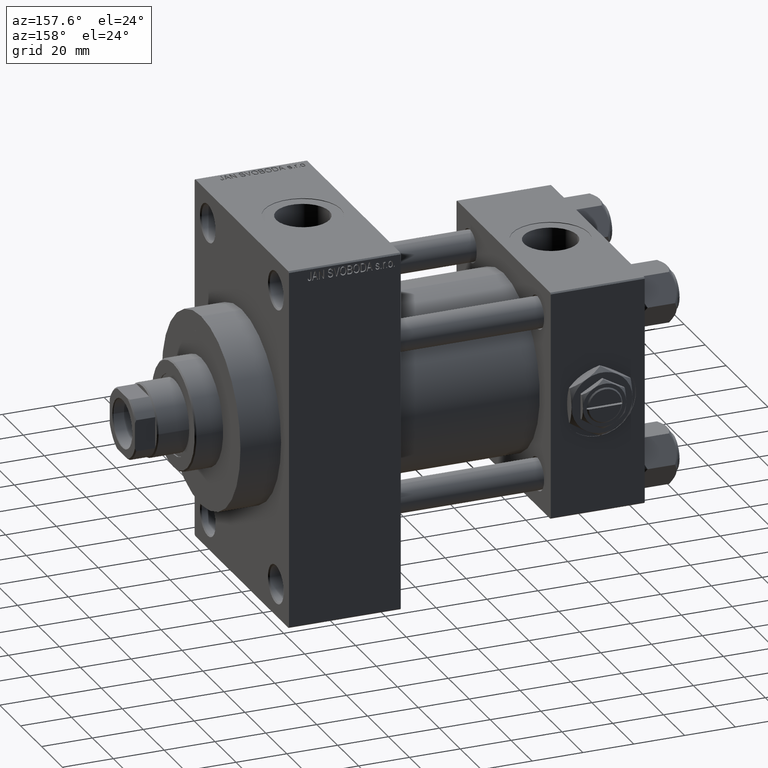
[diagram: clean part render]
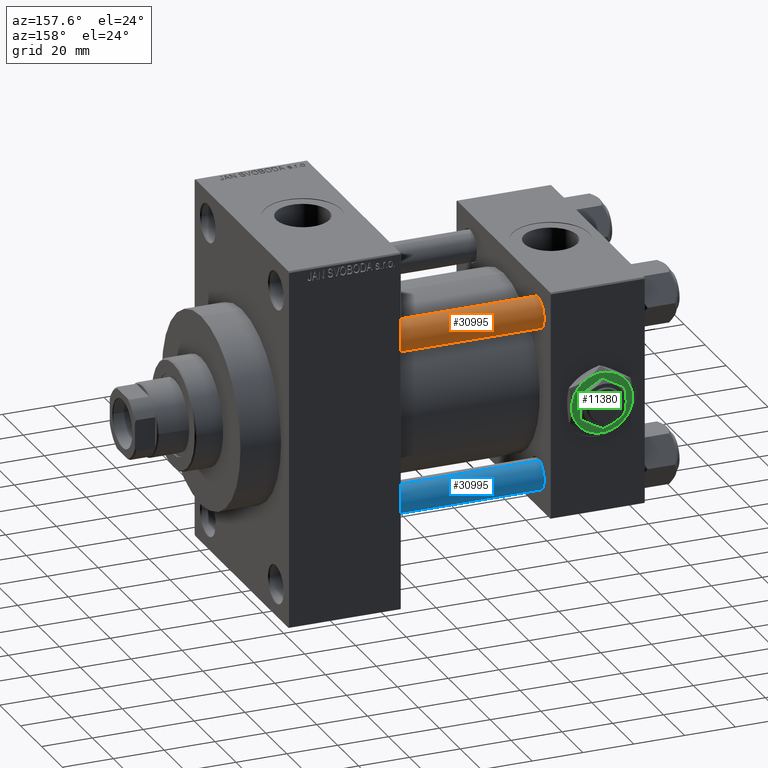
[diagram: same view with three faces highlighted in distinct colors, each labeled with its STEP entity id]
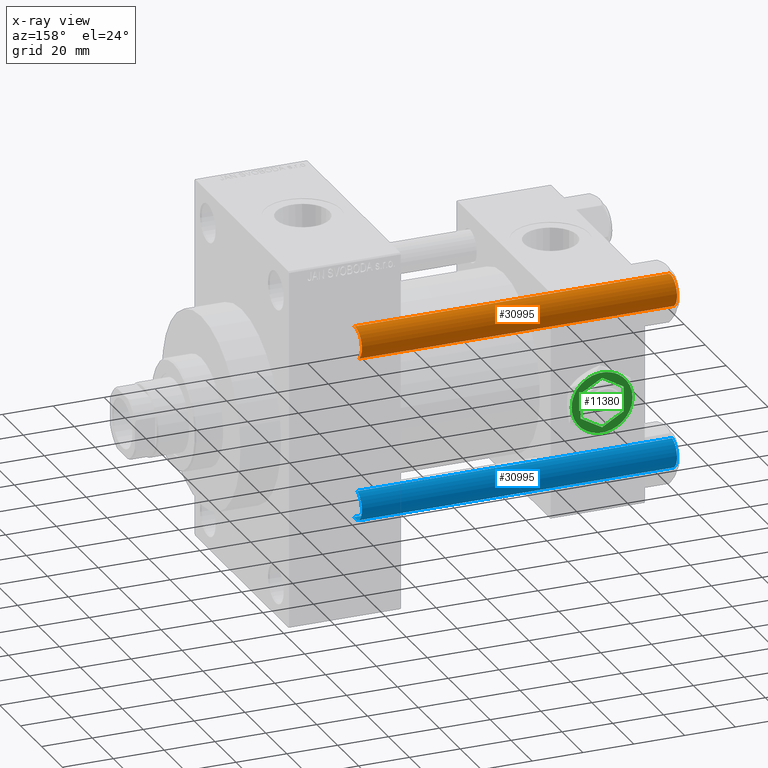
[diagram: x-ray of the same camera — body ghosted, the three highlighted faces saturated]
A machine part, auxiliary view with three faces highlighted in distinct colors.
The next image is the same camera in x-ray (body ghosted, the three faces saturated) — at least one of them is partly hidden behind the body in this view.
Their STEP definitions:

[orange] entity #30995 — the highlighted cylindrical surface (edge-blend (fillet) strip) has radius 6 mm, axis along (-1, -0, 0).
#197 = ORIENTED_EDGE ( 'NONE', *, *, #20188, .T. ) ;
#246 = CIRCLE ( 'NONE', #1820, 6.000000000000000888 ) ;
#1820 = AXIS2_PLACEMENT_3D ( 'NONE', #48285, #2983, #37880 ) ;
#2673 = DIRECTION ( 'NONE',  ( -0.000000000000000000, -0.000000000000000000, 1.000000000000000000 ) ) ;
#2983 = DIRECTION ( 'NONE',  ( 0.000000000000000000, 0.000000000000000000, -1.000000000000000000 ) ) ;
#3056 = CARTESIAN_POINT ( 'NONE',  ( -6.000000000000000888, 0.000000000000000000, 125.0000000000000000 ) ) ;
#4878 = VECTOR ( 'NONE', #11475, 1000.000000000000000 ) ;
#5790 = LINE ( 'NONE', #3056, #4878 ) ;
#6026 = DIRECTION ( 'NONE',  ( -0.000000000000000000, -0.000000000000000000, -1.000000000000000000 ) ) ;
#7194 = VECTOR ( 'NONE', #39983, 1000.000000000000000 ) ;
#8865 = VERTEX_POINT ( 'NONE', #42243 ) ;
#8965 = VERTEX_POINT ( 'NONE', #47664 ) ;
#11475 = DIRECTION ( 'NONE',  ( -0.000000000000000000, -0.000000000000000000, -1.000000000000000000 ) ) ;
#13502 = CARTESIAN_POINT ( 'NONE',  ( 6.000000000000000888, 7.347880794884120722E-16, 125.0000000000000000 ) ) ;
#13576 = CARTESIAN_POINT ( 'NONE',  ( 0.000000000000000000, 0.000000000000000000, 0.4999999999999865663 ) ) ;
#15530 = ORIENTED_EDGE ( 'NONE', *, *, #21997, .F. ) ;
#16934 = FACE_OUTER_BOUND ( 'NONE', #37124, .T. ) ;
#19537 = VERTEX_POINT ( 'NONE', #24829 ) ;
#20188 = EDGE_CURVE ( 'NONE', #47091, #19537, #22263, .T. ) ;
#21997 = EDGE_CURVE ( 'NONE', #8965, #19537, #5790, .T. ) ;
#22263 = CIRCLE ( 'NONE', #31727, 6.000000000000000888 ) ;
#24829 = CARTESIAN_POINT ( 'NONE',  ( -6.000000000000000888, 0.000000000000000000, 0.4999999999999865663 ) ) ;
#24853 = CARTESIAN_POINT ( 'NONE',  ( 0.000000000000000000, 0.000000000000000000, 125.0000000000000000 ) ) ;
#25619 = LINE ( 'NONE', #13502, #7194 ) ;
#29059 = DIRECTION ( 'NONE',  ( -1.000000000000000000, 0.000000000000000000, 0.000000000000000000 ) ) ;
#30995 = ADVANCED_FACE ( 'NONE', ( #16934 ), #47132, .T. ) ;
#31727 = AXIS2_PLACEMENT_3D ( 'NONE', #13576, #2673, #33353 ) ;
#33353 = DIRECTION ( 'NONE',  ( 1.000000000000000000, 0.000000000000000000, 0.000000000000000000 ) ) ;
#34992 = EDGE_CURVE ( 'NONE', #8865, #47091, #25619, .T. ) ;
#37087 = AXIS2_PLACEMENT_3D ( 'NONE', #24853, #6026, #29059 ) ;
#37124 = EDGE_LOOP ( 'NONE', ( #43412, #48748, #197, #15530 ) ) ;
#37880 = DIRECTION ( 'NONE',  ( 1.000000000000000000, 0.000000000000000000, 0.000000000000000000 ) ) ;
#39983 = DIRECTION ( 'NONE',  ( -0.000000000000000000, -0.000000000000000000, -1.000000000000000000 ) ) ;
#42146 = EDGE_CURVE ( 'NONE', #8965, #8865, #246, .T. ) ;
#42243 = CARTESIAN_POINT ( 'NONE',  ( 6.000000000000000888, 7.347880794884120722E-16, 124.5000000000000000 ) ) ;
#43412 = ORIENTED_EDGE ( 'NONE', *, *, #42146, .T. ) ;
#47091 = VERTEX_POINT ( 'NONE', #48726 ) ;
#47132 = CYLINDRICAL_SURFACE ( 'NONE', #37087, 6.000000000000000888 ) ;
#47664 = CARTESIAN_POINT ( 'NONE',  ( -6.000000000000000888, 0.000000000000000000, 124.5000000000000000 ) ) ;
#48285 = CARTESIAN_POINT ( 'NONE',  ( 0.000000000000000000, 0.000000000000000000, 124.5000000000000000 ) ) ;
#48726 = CARTESIAN_POINT ( 'NONE',  ( 6.000000000000000888, 7.347880794884120722E-16, 0.4999999999999865663 ) ) ;
#48748 = ORIENTED_EDGE ( 'NONE', *, *, #34992, .T. ) ;

[blue] entity #30995 — the highlighted cylindrical surface (edge-blend (fillet) strip) has radius 6 mm, axis along (1, -0, 0).
#197 = ORIENTED_EDGE ( 'NONE', *, *, #20188, .T. ) ;
#246 = CIRCLE ( 'NONE', #1820, 6.000000000000000888 ) ;
#1820 = AXIS2_PLACEMENT_3D ( 'NONE', #48285, #2983, #37880 ) ;
#2673 = DIRECTION ( 'NONE',  ( -0.000000000000000000, -0.000000000000000000, 1.000000000000000000 ) ) ;
#2983 = DIRECTION ( 'NONE',  ( 0.000000000000000000, 0.000000000000000000, -1.000000000000000000 ) ) ;
#3056 = CARTESIAN_POINT ( 'NONE',  ( -6.000000000000000888, 0.000000000000000000, 125.0000000000000000 ) ) ;
#4878 = VECTOR ( 'NONE', #11475, 1000.000000000000000 ) ;
#5790 = LINE ( 'NONE', #3056, #4878 ) ;
#6026 = DIRECTION ( 'NONE',  ( -0.000000000000000000, -0.000000000000000000, -1.000000000000000000 ) ) ;
#7194 = VECTOR ( 'NONE', #39983, 1000.000000000000000 ) ;
#8865 = VERTEX_POINT ( 'NONE', #42243 ) ;
#8965 = VERTEX_POINT ( 'NONE', #47664 ) ;
#11475 = DIRECTION ( 'NONE',  ( -0.000000000000000000, -0.000000000000000000, -1.000000000000000000 ) ) ;
#13502 = CARTESIAN_POINT ( 'NONE',  ( 6.000000000000000888, 7.347880794884120722E-16, 125.0000000000000000 ) ) ;
#13576 = CARTESIAN_POINT ( 'NONE',  ( 0.000000000000000000, 0.000000000000000000, 0.4999999999999865663 ) ) ;
#15530 = ORIENTED_EDGE ( 'NONE', *, *, #21997, .F. ) ;
#16934 = FACE_OUTER_BOUND ( 'NONE', #37124, .T. ) ;
#19537 = VERTEX_POINT ( 'NONE', #24829 ) ;
#20188 = EDGE_CURVE ( 'NONE', #47091, #19537, #22263, .T. ) ;
#21997 = EDGE_CURVE ( 'NONE', #8965, #19537, #5790, .T. ) ;
#22263 = CIRCLE ( 'NONE', #31727, 6.000000000000000888 ) ;
#24829 = CARTESIAN_POINT ( 'NONE',  ( -6.000000000000000888, 0.000000000000000000, 0.4999999999999865663 ) ) ;
#24853 = CARTESIAN_POINT ( 'NONE',  ( 0.000000000000000000, 0.000000000000000000, 125.0000000000000000 ) ) ;
#25619 = LINE ( 'NONE', #13502, #7194 ) ;
#29059 = DIRECTION ( 'NONE',  ( -1.000000000000000000, 0.000000000000000000, 0.000000000000000000 ) ) ;
#30995 = ADVANCED_FACE ( 'NONE', ( #16934 ), #47132, .T. ) ;
#31727 = AXIS2_PLACEMENT_3D ( 'NONE', #13576, #2673, #33353 ) ;
#33353 = DIRECTION ( 'NONE',  ( 1.000000000000000000, 0.000000000000000000, 0.000000000000000000 ) ) ;
#34992 = EDGE_CURVE ( 'NONE', #8865, #47091, #25619, .T. ) ;
#37087 = AXIS2_PLACEMENT_3D ( 'NONE', #24853, #6026, #29059 ) ;
#37124 = EDGE_LOOP ( 'NONE', ( #43412, #48748, #197, #15530 ) ) ;
#37880 = DIRECTION ( 'NONE',  ( 1.000000000000000000, 0.000000000000000000, 0.000000000000000000 ) ) ;
#39983 = DIRECTION ( 'NONE',  ( -0.000000000000000000, -0.000000000000000000, -1.000000000000000000 ) ) ;
#42146 = EDGE_CURVE ( 'NONE', #8965, #8865, #246, .T. ) ;
#42243 = CARTESIAN_POINT ( 'NONE',  ( 6.000000000000000888, 7.347880794884120722E-16, 124.5000000000000000 ) ) ;
#43412 = ORIENTED_EDGE ( 'NONE', *, *, #42146, .T. ) ;
#47091 = VERTEX_POINT ( 'NONE', #48726 ) ;
#47132 = CYLINDRICAL_SURFACE ( 'NONE', #37087, 6.000000000000000888 ) ;
#47664 = CARTESIAN_POINT ( 'NONE',  ( -6.000000000000000888, 0.000000000000000000, 124.5000000000000000 ) ) ;
#48285 = CARTESIAN_POINT ( 'NONE',  ( 0.000000000000000000, 0.000000000000000000, 124.5000000000000000 ) ) ;
#48726 = CARTESIAN_POINT ( 'NONE',  ( 6.000000000000000888, 7.347880794884120722E-16, 0.4999999999999865663 ) ) ;
#48748 = ORIENTED_EDGE ( 'NONE', *, *, #34992, .T. ) ;

[green] entity #11380 — the highlighted planar face has unit normal (0, 1, 0).
#109 = ORIENTED_EDGE ( 'NONE', *, *, #30796, .F. ) ;
#130 = VECTOR ( 'NONE', #32143, 1000.000000000000114 ) ;
#461 = ORIENTED_EDGE ( 'NONE', *, *, #28599, .T. ) ;
#1671 = VERTEX_POINT ( 'NONE', #26677 ) ;
#3324 = DIRECTION ( 'NONE',  ( 0.000000000000000000, 0.000000000000000000, 1.000000000000000000 ) ) ;
#3749 = AXIS2_PLACEMENT_3D ( 'NONE', #33901, #7413, #49003 ) ;
#4309 = ORIENTED_EDGE ( 'NONE', *, *, #14888, .T. ) ;
#4501 = ORIENTED_EDGE ( 'NONE', *, *, #24500, .T. ) ;
#5567 = DIRECTION ( 'NONE',  ( 0.000000000000000000, 0.000000000000000000, 1.000000000000000000 ) ) ;
#5727 = CARTESIAN_POINT ( 'NONE',  ( 8.500000000000000000, -4.907477288111819824, 4.299999999999999822 ) ) ;
#6109 = AXIS2_PLACEMENT_3D ( 'NONE', #32057, #5567, #29086 ) ;
#6652 = DIRECTION ( 'NONE',  ( 1.000000000000000000, 0.000000000000000000, 0.000000000000000000 ) ) ;
#6762 = CARTESIAN_POINT ( 'NONE',  ( -8.500000000000000000, -4.907477288111819824, 4.299999999999999822 ) ) ;
#7413 = DIRECTION ( 'NONE',  ( 0.000000000000000000, 0.000000000000000000, 1.000000000000000000 ) ) ;
#8475 = EDGE_CURVE ( 'NONE', #13440, #1671, #25108, .T. ) ;
#9390 = DIRECTION ( 'NONE',  ( 0.8660254037844388186, 0.4999999999999997224, 0.000000000000000000 ) ) ;
#11380 = ADVANCED_FACE ( 'NONE', ( #39479, #40216 ), #20683, .T. ) ;
#12132 = CIRCLE ( 'NONE', #31085, 12.00000000000000178 ) ;
#12261 = AXIS2_PLACEMENT_3D ( 'NONE', #36850, #44750, #22237 ) ;
#12561 = VERTEX_POINT ( 'NONE', #47352 ) ;
#13096 = DIRECTION ( 'NONE',  ( -0.8660254037844385966, -0.5000000000000000000, 0.000000000000000000 ) ) ;
#13440 = VERTEX_POINT ( 'NONE', #22642 ) ;
#13476 = CARTESIAN_POINT ( 'NONE',  ( 0.000000000000000000, 0.000000000000000000, 4.299999999999999822 ) ) ;
#14409 = ORIENTED_EDGE ( 'NONE', *, *, #8475, .T. ) ;
#14888 = EDGE_CURVE ( 'NONE', #27397, #13440, #48166, .T. ) ;
#15008 = VECTOR ( 'NONE', #9390, 1000.000000000000114 ) ;
#15156 = VERTEX_POINT ( 'NONE', #17253 ) ;
#16723 = ORIENTED_EDGE ( 'NONE', *, *, #32335, .F. ) ;
#16801 = LINE ( 'NONE', #46999, #130 ) ;
#17253 = CARTESIAN_POINT ( 'NONE',  ( 8.499999999999996447, 4.907477288111821601, 4.299999999999999822 ) ) ;
#17562 = CARTESIAN_POINT ( 'NONE',  ( -2.644623992720612091E-15, -9.814954576223637872, 4.299999999999999822 ) ) ;
#17899 = VERTEX_POINT ( 'NONE', #34293 ) ;
#17951 = ORIENTED_EDGE ( 'NONE', *, *, #46996, .T. ) ;
#18517 = EDGE_LOOP ( 'NONE', ( #4501, #17951, #461, #26287, #4309, #14409 ) ) ;
#19117 = ORIENTED_EDGE ( 'NONE', *, *, #32743, .F. ) ;
#19142 = CARTESIAN_POINT ( 'NONE',  ( -8.500000000000000000, -4.907477288111819824, 4.299999999999999822 ) ) ;
#19701 = AXIS2_PLACEMENT_3D ( 'NONE', #44270, #24985, #6652 ) ;
#20283 = LINE ( 'NONE', #36100, #46172 ) ;
#20683 = PLANE ( 'NONE',  #6109 ) ;
#21164 = EDGE_LOOP ( 'NONE', ( #43364, #45161, #109, #16723, #40721, #19117 ) ) ;
#21341 = CIRCLE ( 'NONE', #30033, 12.00000000000000178 ) ;
#21427 = DIRECTION ( 'NONE',  ( 1.000000000000000000, 0.000000000000000000, 0.000000000000000000 ) ) ;
#21701 = CARTESIAN_POINT ( 'NONE',  ( 11.99999999999999645, 3.004629197474318063E-15, 4.299999999999999822 ) ) ;
#22145 = CARTESIAN_POINT ( 'NONE',  ( 0.000000000000000000, 0.000000000000000000, 4.299999999999999822 ) ) ;
#22237 = DIRECTION ( 'NONE',  ( 1.000000000000000000, 0.000000000000000000, 0.000000000000000000 ) ) ;
#22402 = VERTEX_POINT ( 'NONE', #21701 ) ;
#22642 = CARTESIAN_POINT ( 'NONE',  ( -6.000000000000000000, -10.39230484541326582, 4.299999999999999822 ) ) ;
#23205 = CARTESIAN_POINT ( 'NONE',  ( -12.00000000000000178, 0.000000000000000000, 4.299999999999999822 ) ) ;
#23218 = VECTOR ( 'NONE', #38686, 1000.000000000000114 ) ;
#24500 = EDGE_CURVE ( 'NONE', #1671, #22402, #38870, .T. ) ;
#24626 = DIRECTION ( 'NONE',  ( 0.000000000000000000, 0.000000000000000000, 1.000000000000000000 ) ) ;
#24892 = EDGE_CURVE ( 'NONE', #15156, #36003, #16801, .T. ) ;
#24985 = DIRECTION ( 'NONE',  ( 0.000000000000000000, 0.000000000000000000, 1.000000000000000000 ) ) ;
#25108 = CIRCLE ( 'NONE', #3749, 12.00000000000000178 ) ;
#25179 = CARTESIAN_POINT ( 'NONE',  ( -8.500000000000000000, 4.907477288111818048, 4.299999999999999822 ) ) ;
#25235 = LINE ( 'NONE', #17562, #15008 ) ;
#26287 = ORIENTED_EDGE ( 'NONE', *, *, #43701, .T. ) ;
#26480 = EDGE_CURVE ( 'NONE', #31031, #31494, #37947, .T. ) ;
#26677 = CARTESIAN_POINT ( 'NONE',  ( 5.999999999999998224, -10.39230484541326760, 4.299999999999999822 ) ) ;
#26680 = VERTEX_POINT ( 'NONE', #5727 ) ;
#27290 = CIRCLE ( 'NONE', #12261, 12.00000000000000178 ) ;
#27397 = VERTEX_POINT ( 'NONE', #23205 ) ;
#28562 = DIRECTION ( 'NONE',  ( 1.000000000000000000, 0.000000000000000000, 0.000000000000000000 ) ) ;
#28580 = DIRECTION ( 'NONE',  ( 1.000000000000000000, 0.000000000000000000, 0.000000000000000000 ) ) ;
#28599 = EDGE_CURVE ( 'NONE', #48390, #12561, #21341, .T. ) ;
#29086 = DIRECTION ( 'NONE',  ( 1.000000000000000000, 0.000000000000000000, -0.000000000000000000 ) ) ;
#30033 = AXIS2_PLACEMENT_3D ( 'NONE', #36709, #40423, #28562 ) ;
#30796 = EDGE_CURVE ( 'NONE', #26680, #15156, #48887, .T. ) ;
#31031 = VERTEX_POINT ( 'NONE', #6762 ) ;
#31085 = AXIS2_PLACEMENT_3D ( 'NONE', #13476, #24626, #28580 ) ;
#31494 = VERTEX_POINT ( 'NONE', #46295 ) ;
#31574 = VECTOR ( 'NONE', #45166, 1000.000000000000000 ) ;
#32057 = CARTESIAN_POINT ( 'NONE',  ( 0.000000000000000000, 0.000000000000000000, 4.299999999999999822 ) ) ;
#32111 = LINE ( 'NONE', #25179, #33239 ) ;
#32143 = DIRECTION ( 'NONE',  ( -0.8660254037844387076, 0.4999999999999998890, 0.000000000000000000 ) ) ;
#32335 = EDGE_CURVE ( 'NONE', #31494, #26680, #25235, .T. ) ;
#32743 = EDGE_CURVE ( 'NONE', #17899, #31031, #32111, .T. ) ;
#33239 = VECTOR ( 'NONE', #47213, 1000.000000000000000 ) ;
#33901 = CARTESIAN_POINT ( 'NONE',  ( 0.000000000000000000, 0.000000000000000000, 4.299999999999999822 ) ) ;
#34293 = CARTESIAN_POINT ( 'NONE',  ( -8.500000000000000000, 4.907477288111818048, 4.299999999999999822 ) ) ;
#34561 = CARTESIAN_POINT ( 'NONE',  ( 6.000000000000000888, 10.39230484541326582, 4.299999999999999822 ) ) ;
#36003 = VERTEX_POINT ( 'NONE', #43899 ) ;
#36100 = CARTESIAN_POINT ( 'NONE',  ( 0.000000000000000000, 9.814954576223637872, 4.299999999999999822 ) ) ;
#36709 = CARTESIAN_POINT ( 'NONE',  ( 0.000000000000000000, 0.000000000000000000, 4.299999999999999822 ) ) ;
#36850 = CARTESIAN_POINT ( 'NONE',  ( 0.000000000000000000, 0.000000000000000000, 4.299999999999999822 ) ) ;
#37255 = CARTESIAN_POINT ( 'NONE',  ( 8.500000000000000000, -4.907477288111819824, 4.299999999999999822 ) ) ;
#37947 = LINE ( 'NONE', #19142, #23218 ) ;
#38686 = DIRECTION ( 'NONE',  ( 0.8660254037844385966, -0.5000000000000001110, 0.000000000000000000 ) ) ;
#38870 = CIRCLE ( 'NONE', #48371, 12.00000000000000178 ) ;
#39479 = FACE_OUTER_BOUND ( 'NONE', #18517, .T. ) ;
#40216 = FACE_BOUND ( 'NONE', #21164, .T. ) ;
#40423 = DIRECTION ( 'NONE',  ( 0.000000000000000000, 0.000000000000000000, 1.000000000000000000 ) ) ;
#40721 = ORIENTED_EDGE ( 'NONE', *, *, #26480, .F. ) ;
#43364 = ORIENTED_EDGE ( 'NONE', *, *, #46031, .F. ) ;
#43701 = EDGE_CURVE ( 'NONE', #12561, #27397, #12132, .T. ) ;
#43899 = CARTESIAN_POINT ( 'NONE',  ( 0.000000000000000000, 9.814954576223637872, 4.299999999999999822 ) ) ;
#44270 = CARTESIAN_POINT ( 'NONE',  ( 0.000000000000000000, 0.000000000000000000, 4.299999999999999822 ) ) ;
#44750 = DIRECTION ( 'NONE',  ( 0.000000000000000000, 0.000000000000000000, 1.000000000000000000 ) ) ;
#45161 = ORIENTED_EDGE ( 'NONE', *, *, #24892, .F. ) ;
#45166 = DIRECTION ( 'NONE',  ( -3.534857879381550604E-16, 1.000000000000000000, 0.000000000000000000 ) ) ;
#46031 = EDGE_CURVE ( 'NONE', #36003, #17899, #20283, .T. ) ;
#46172 = VECTOR ( 'NONE', #13096, 1000.000000000000227 ) ;
#46295 = CARTESIAN_POINT ( 'NONE',  ( -2.644623992720612091E-15, -9.814954576223637872, 4.299999999999999822 ) ) ;
#46996 = EDGE_CURVE ( 'NONE', #22402, #48390, #27290, .T. ) ;
#46999 = CARTESIAN_POINT ( 'NONE',  ( 8.499999999999996447, 4.907477288111821601, 4.299999999999999822 ) ) ;
#47213 = DIRECTION ( 'NONE',  ( 0.000000000000000000, -1.000000000000000000, 0.000000000000000000 ) ) ;
#47352 = CARTESIAN_POINT ( 'NONE',  ( -6.000000000000001776, 10.39230484541326405, 4.299999999999999822 ) ) ;
#48166 = CIRCLE ( 'NONE', #19701, 12.00000000000000178 ) ;
#48371 = AXIS2_PLACEMENT_3D ( 'NONE', #22145, #3324, #21427 ) ;
#48390 = VERTEX_POINT ( 'NONE', #34561 ) ;
#48887 = LINE ( 'NONE', #37255, #31574 ) ;
#49003 = DIRECTION ( 'NONE',  ( 1.000000000000000000, 0.000000000000000000, 0.000000000000000000 ) ) ;